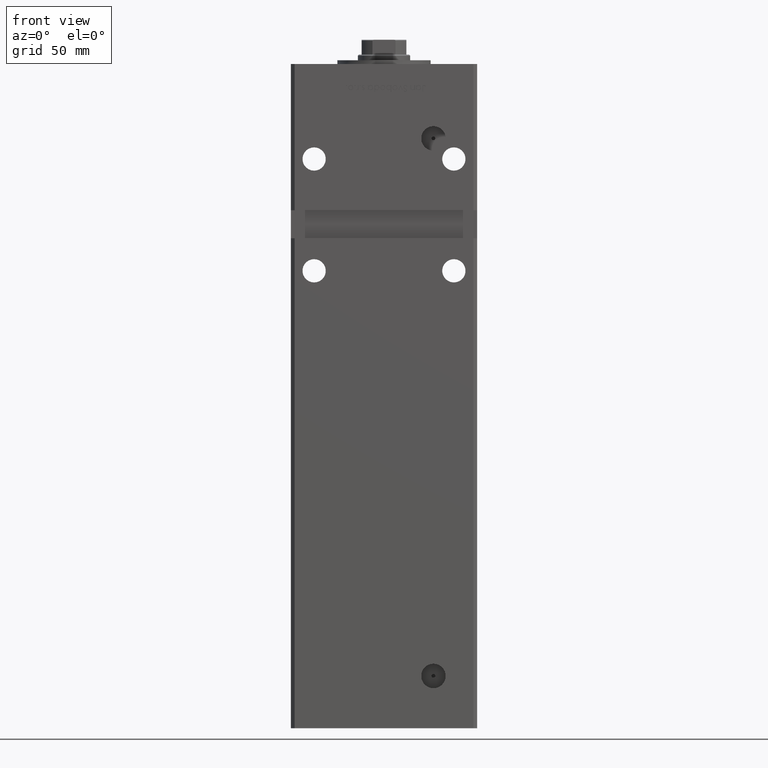
[diagram: clean part render]
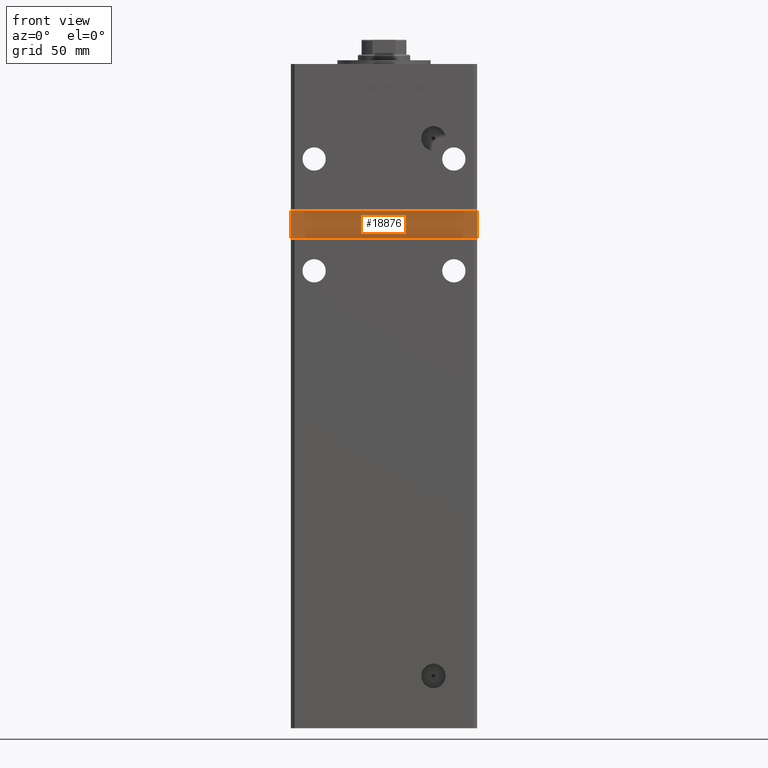
[diagram: same view with one face highlighted and labeled with its STEP entity id]
A machine part, front view. The second image highlights one B-rep face of the part: STEP entity #18876.
In plain terms, the highlighted planar face has unit normal (0, -1, 0).
Its self-contained STEP definition (entity closure, byte-faithful):
#749 = DIRECTION ( 'NONE',  ( 1.000000000000000000, 0.000000000000000000, 0.000000000000000000 ) ) ;
#1204 = ORIENTED_EDGE ( 'NONE', *, *, #52562, .T. ) ;
#1523 = CARTESIAN_POINT ( 'NONE',  ( -49.99999999999998579, -38.50000000000000000, 244.0000000000000000 ) ) ;
#1694 = DIRECTION ( 'NONE',  ( 0.000000000000000000, 0.000000000000000000, -1.000000000000000000 ) ) ;
#2822 = VERTEX_POINT ( 'NONE', #7026 ) ;
#6219 = AXIS2_PLACEMENT_3D ( 'NONE', #9066, #29215, #29987 ) ;
#6622 = CARTESIAN_POINT ( 'NONE',  ( -49.99999999999998579, -38.50000000000000000, 259.0000000000000000 ) ) ;
#7026 = CARTESIAN_POINT ( 'NONE',  ( 49.99999999999998579, -38.50000000000000000, 259.0000000000000000 ) ) ;
#8484 = ORIENTED_EDGE ( 'NONE', *, *, #51617, .T. ) ;
#9066 = CARTESIAN_POINT ( 'NONE',  ( 0.000000000000000000, -38.50000000000000000, 0.000000000000000000 ) ) ;
#9483 = LINE ( 'NONE', #22082, #19305 ) ;
#11782 = CARTESIAN_POINT ( 'NONE',  ( -49.99999999999998579, -38.50000000000000000, 259.0000000000000000 ) ) ;
#12850 = FACE_OUTER_BOUND ( 'NONE', #43947, .T. ) ;
#18876 = ADVANCED_FACE ( 'NONE', ( #12850 ), #29727, .T. ) ;
#19305 = VECTOR ( 'NONE', #1694, 1000.000000000000000 ) ;
#19908 = ORIENTED_EDGE ( 'NONE', *, *, #34174, .T. ) ;
#20070 = DIRECTION ( 'NONE',  ( -0.000000000000000000, -0.000000000000000000, 1.000000000000000000 ) ) ;
#20334 = LINE ( 'NONE', #36192, #48093 ) ;
#22082 = CARTESIAN_POINT ( 'NONE',  ( -49.99999999999998579, -38.50000000000000000, 259.0000000000000000 ) ) ;
#22978 = VERTEX_POINT ( 'NONE', #6622 ) ;
#24108 = LINE ( 'NONE', #11782, #35187 ) ;
#24551 = VECTOR ( 'NONE', #749, 1000.000000000000000 ) ;
#25174 = LINE ( 'NONE', #1523, #24551 ) ;
#28675 = DIRECTION ( 'NONE',  ( -1.000000000000000000, -0.000000000000000000, -0.000000000000000000 ) ) ;
#29215 = DIRECTION ( 'NONE',  ( 0.000000000000000000, -1.000000000000000000, 0.000000000000000000 ) ) ;
#29727 = PLANE ( 'NONE',  #6219 ) ;
#29987 = DIRECTION ( 'NONE',  ( 0.000000000000000000, -0.000000000000000000, -1.000000000000000000 ) ) ;
#31836 = VERTEX_POINT ( 'NONE', #37944 ) ;
#31849 = EDGE_CURVE ( 'NONE', #22978, #39581, #9483, .T. ) ;
#34174 = EDGE_CURVE ( 'NONE', #39581, #31836, #25174, .T. ) ;
#34290 = ORIENTED_EDGE ( 'NONE', *, *, #31849, .T. ) ;
#35187 = VECTOR ( 'NONE', #28675, 1000.000000000000000 ) ;
#36192 = CARTESIAN_POINT ( 'NONE',  ( 49.99999999999998579, -38.50000000000000000, 259.0000000000000000 ) ) ;
#37944 = CARTESIAN_POINT ( 'NONE',  ( 49.99999999999998579, -38.49999999999999289, 244.0000000000000000 ) ) ;
#39581 = VERTEX_POINT ( 'NONE', #43862 ) ;
#43862 = CARTESIAN_POINT ( 'NONE',  ( -49.99999999999998579, -38.50000000000000000, 244.0000000000000000 ) ) ;
#43947 = EDGE_LOOP ( 'NONE', ( #8484, #1204, #34290, #19908 ) ) ;
#48093 = VECTOR ( 'NONE', #20070, 1000.000000000000000 ) ;
#51617 = EDGE_CURVE ( 'NONE', #31836, #2822, #20334, .T. ) ;
#52562 = EDGE_CURVE ( 'NONE', #2822, #22978, #24108, .T. ) ;